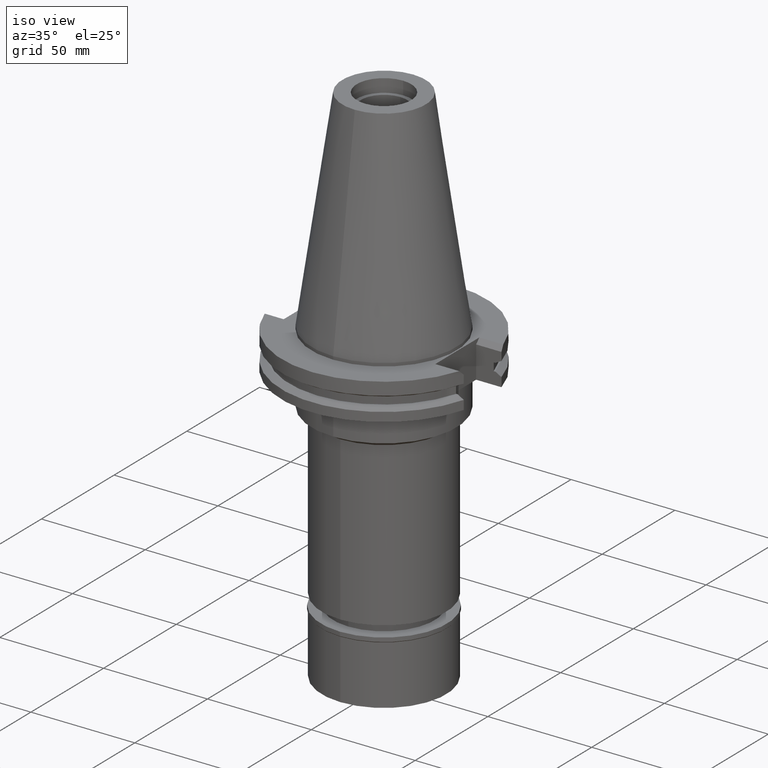
[diagram: clean part render]
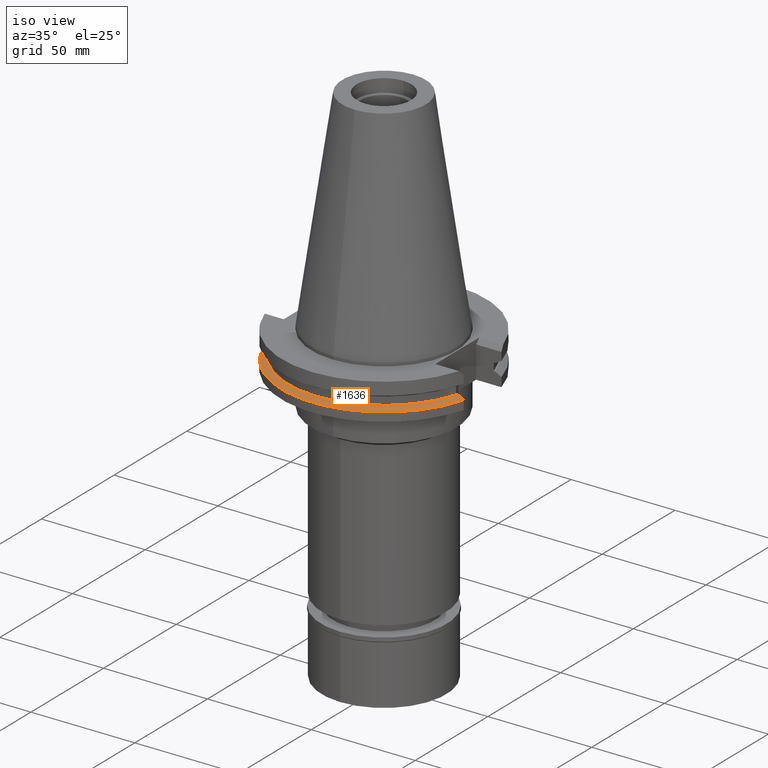
[diagram: same view with one face highlighted and labeled with its STEP entity id]
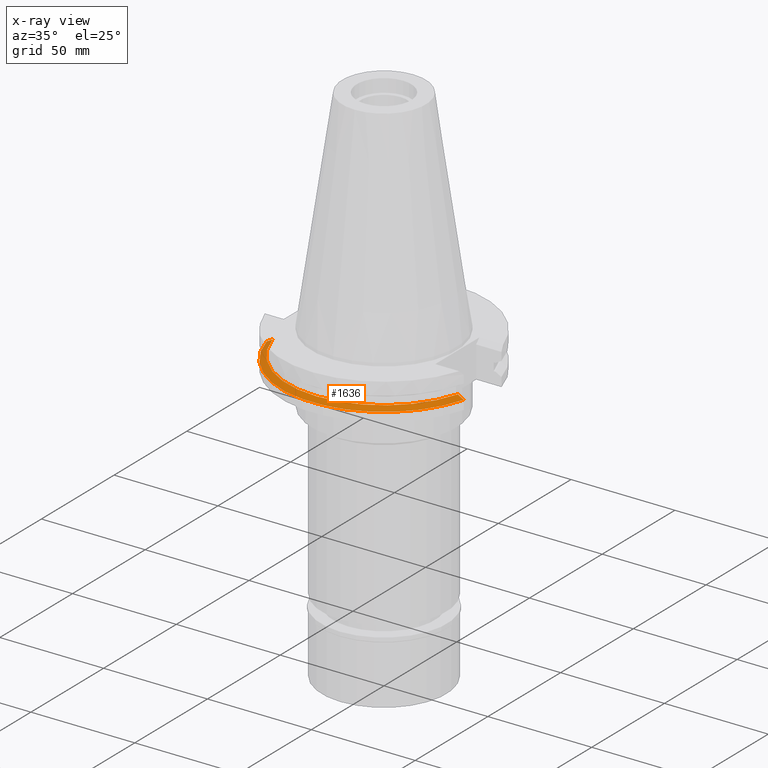
[diagram: x-ray of the same camera — body ghosted, the highlighted face saturated]
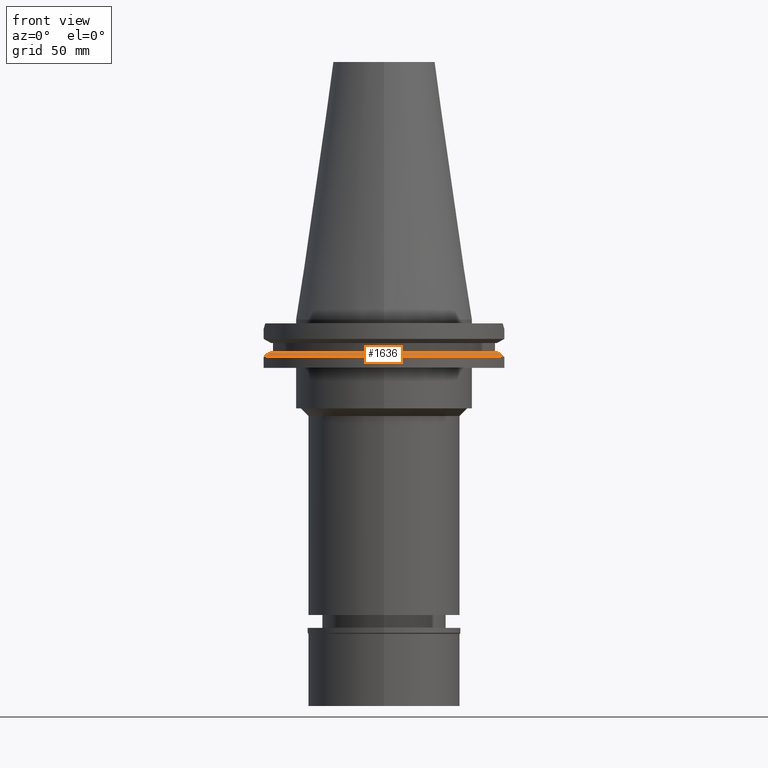
[diagram: same view with one face highlighted and labeled with its STEP entity id]
A machine part, iso view. The second image highlights one B-rep face of the part: STEP entity #1636.
The next image is the same camera in x-ray: the body ghosted, the highlighted face saturated — about 0% of this face is hidden behind the body in this view.
A second angle (front view) of the same face is appended — the face is thin or edge-on in the first view.
In plain terms, the highlighted conical surface has half-angle 60 deg.
Its self-contained STEP definition (entity closure, byte-faithful):
#212 = CONICAL_SURFACE ( 'NONE', #1198, 47.82151877527000039, 1.047197551196400456 ) ;
#332 = DIRECTION ( 'NONE',  ( 0.0000000000000000000, 0.0000000000000000000, -1.000000000000000000 ) ) ;
#562 = CARTESIAN_POINT ( 'NONE',  ( 47.47671146204000081, -12.95500000000000007, -14.65366676908000088 ) ) ;
#572 = AXIS2_PLACEMENT_3D ( 'NONE', #1813, #2796, #595 ) ;
#595 = DIRECTION ( 'NONE',  ( 0.0000000000000000000, -1.000000000000000000, 0.0000000000000000000 ) ) ;
#607 = EDGE_CURVE ( 'NONE', #2175, #1911, #1331, .T. ) ;
#764 = B_SPLINE_CURVE_WITH_KNOTS ( 'NONE', 3,
 ( #1250, #2224, #2999, #2267 ),
 .UNSPECIFIED., .F., .F.,
 ( 4, 4 ),
 ( 0.0000000000000000000, 1.000000000000000000 ),
 .UNSPECIFIED. ) ;
#811 = CARTESIAN_POINT ( 'NONE',  ( 44.58657636813000380, -12.95500000000000007, -13.04749999999999943 ) ) ;
#860 = CARTESIAN_POINT ( 'NONE',  ( 0.0000000000000000000, 0.0000000000000000000, -13.85058338454000015 ) ) ;
#892 = CARTESIAN_POINT ( 'NONE',  ( 47.47671146204000081, -12.95500000000000007, -14.65366676908000088 ) ) ;
#1028 = ORIENTED_EDGE ( 'NONE', *, *, #1752, .F. ) ;
#1072 = CARTESIAN_POINT ( 'NONE',  ( 0.0000000000000000000, 0.0000000000000000000, -14.65366676908000088 ) ) ;
#1198 = AXIS2_PLACEMENT_3D ( 'NONE', #860, #2781, #1588 ) ;
#1250 = CARTESIAN_POINT ( 'NONE',  ( -47.47671146204000081, -12.95500000000000007, -14.65366676908000088 ) ) ;
#1295 = AXIS2_PLACEMENT_3D ( 'NONE', #1072, #332, #1873 ) ;
#1331 = B_SPLINE_CURVE_WITH_KNOTS ( 'NONE', 3,
 ( #811, #1569, #2266, #562 ),
 .UNSPECIFIED., .F., .F.,
 ( 4, 4 ),
 ( 0.0000000000000000000, 1.000000000000000000 ),
 .UNSPECIFIED. ) ;
#1430 = ORIENTED_EDGE ( 'NONE', *, *, #607, .F. ) ;
#1568 = CIRCLE ( 'NONE', #572, 46.43053755052999776 ) ;
#1569 = CARTESIAN_POINT ( 'NONE',  ( 45.52193301023102379, -12.95500000000000007, -13.56608150203324037 ) ) ;
#1588 = DIRECTION ( 'NONE',  ( 0.0000000000000000000, -1.000000000000000000, 0.0000000000000000000 ) ) ;
#1636 = ADVANCED_FACE ( 'NONE', ( #2770 ), #212, .T. ) ;
#1752 = EDGE_CURVE ( 'NONE', #1911, #3048, #2280, .T. ) ;
#1769 = EDGE_CURVE ( 'NONE', #2175, #2488, #1568, .T. ) ;
#1813 = CARTESIAN_POINT ( 'NONE',  ( 0.0000000000000000000, 0.0000000000000000000, -13.04749999999999943 ) ) ;
#1873 = DIRECTION ( 'NONE',  ( 0.9647287063660957562, -0.2632461264922989486, 0.0000000000000000000 ) ) ;
#1911 = VERTEX_POINT ( 'NONE', #892 ) ;
#2047 = EDGE_CURVE ( 'NONE', #3048, #2488, #764, .T. ) ;
#2073 = CARTESIAN_POINT ( 'NONE',  ( -47.47671146204000081, -12.95500000000000007, -14.65366676908000088 ) ) ;
#2175 = VERTEX_POINT ( 'NONE', #2707 ) ;
#2224 = CARTESIAN_POINT ( 'NONE',  ( -46.48531138143672337, -12.95500000000000007, -14.10147042870506695 ) ) ;
#2266 = CARTESIAN_POINT ( 'NONE',  ( 46.48531137486769182, -12.95500000000000007, -14.10147042505990633 ) ) ;
#2267 = CARTESIAN_POINT ( 'NONE',  ( -44.58657636813000380, -12.95500000000000007, -13.04749999999999943 ) ) ;
#2280 = CIRCLE ( 'NONE', #1295, 49.21250000000001279 ) ;
#2488 = VERTEX_POINT ( 'NONE', #2577 ) ;
#2553 = ORIENTED_EDGE ( 'NONE', *, *, #2047, .F. ) ;
#2577 = CARTESIAN_POINT ( 'NONE',  ( -44.58657636813000380, -12.95500000000000007, -13.04749999999999943 ) ) ;
#2647 = EDGE_LOOP ( 'NONE', ( #1430, #3055, #2553, #1028 ) ) ;
#2707 = CARTESIAN_POINT ( 'NONE',  ( 44.58657636813000380, -12.95500000000000007, -13.04749999999999943 ) ) ;
#2770 = FACE_OUTER_BOUND ( 'NONE', #2647, .T. ) ;
#2781 = DIRECTION ( 'NONE',  ( 0.0000000000000000000, 0.0000000000000000000, -1.000000000000000000 ) ) ;
#2796 = DIRECTION ( 'NONE',  ( 0.0000000000000000000, 0.0000000000000000000, -1.000000000000000000 ) ) ;
#2999 = CARTESIAN_POINT ( 'NONE',  ( -45.52193301680006243, -12.95500000000000007, -13.56608150567840099 ) ) ;
#3048 = VERTEX_POINT ( 'NONE', #2073 ) ;
#3055 = ORIENTED_EDGE ( 'NONE', *, *, #1769, .T. ) ;